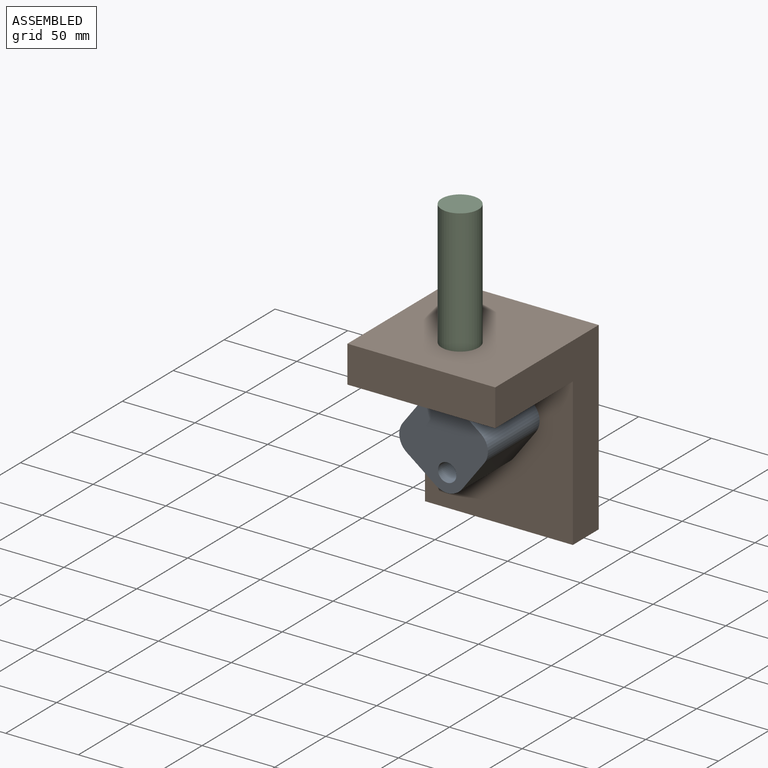
[diagram: assembled view]
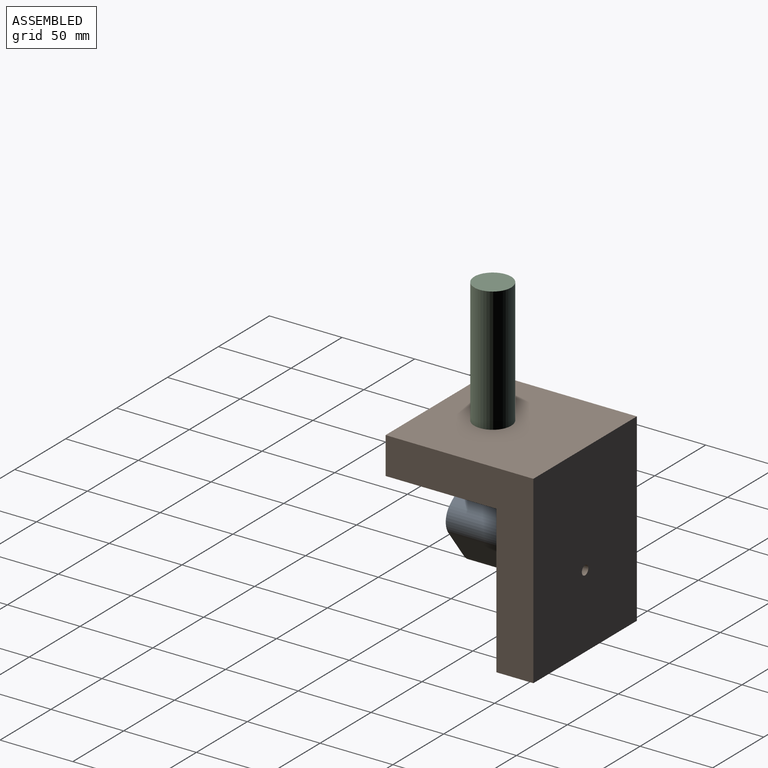
[diagram: assembled view, second angle]
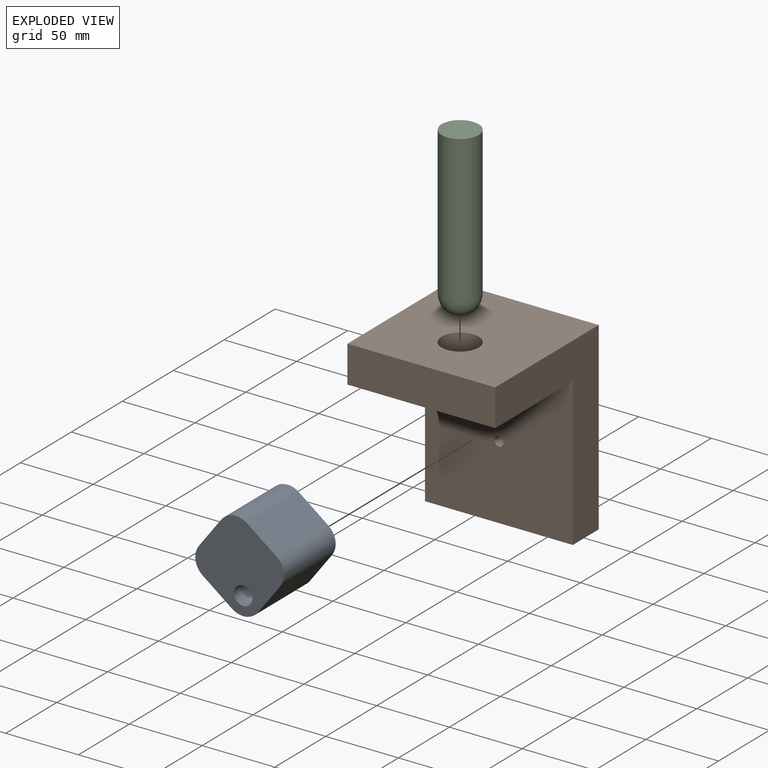
[diagram: exploded view]
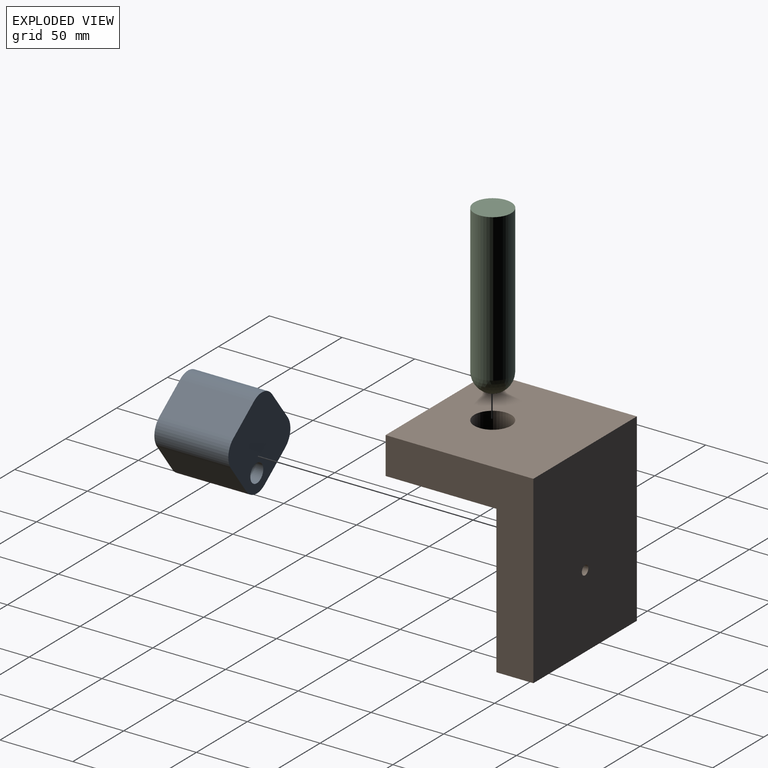
[diagram: exploded view, second angle]
ASSEMBLY  parts=3 mates=2
PART A: 11 faces, bbox 50.8x50.8x50.8 mm
  f0: plane 50.8x25.4mm, normal (1,0,0), area 1290.3mm2, adj f1,f7,f8,f9
  f1: cylinder r=12.7mm len=50.8mm, axis (0,1,0), area 1013.4mm2, adj f0,f2,f8,f9
  f2: plane 50.8x25.4mm, normal (0,0,1), area 1290.3mm2, adj f1,f3,f8,f9
  f3: cylinder r=12.7mm len=50.8mm, axis (0,1,0), area 1013.4mm2, adj f2,f4,f8,f9
  f4: plane 50.8x25.4mm, normal (-1,0,0), area 1290.3mm2, adj f3,f5,f8,f9
  f5: cylinder r=12.7mm len=50.8mm, axis (0,1,0), area 1013.4mm2, adj f4,f6,f8,f9
  f6: plane 50.8x25.4mm, normal (0,0,-1), area 1290.3mm2, adj f5,f7,f8,f9
  f7: cylinder r=12.7mm len=50.8mm, axis (0,1,0), area 1013.4mm2, adj f0,f6,f8,f9
  f8: plane 50.8x50.8mm, normal (0,-1,0), area 2315.5mm2, adj f0,f1,f2,f3,f4,f5,f6,f7
  f9: plane 50.8x50.8mm, normal (0,1,0), area 2315.5mm2, adj f0,f1,f2,f3,f4,f5,f6,f7
  f10: cylinder r=6.35mm len=50.8mm, axis (0,-1,0), area 2026.8mm2, adj f8,f9
PART B: 10 faces, bbox 101.6x101.6x127 mm
  f0: plane 127x101.6mm, normal (-1,0,0), area 5161.3mm2, adj f1,f3,f4,f5,f6,f7
  f1: plane 101.6x25.4mm, normal (0,0,-1), area 2580.6mm2, adj f0,f2,f3,f4
  f2: plane 127x101.6mm, normal (1,0,0), area 5161.3mm2, adj f1,f3,f4,f5,f6,f7
  f3: plane 101.6x101.6mm, normal (0,-1,0), area 10290.9mm2, adj f0,f1,f2,f5,f9
  f4: plane 127x101.6mm, normal (0,1,0), area 12871.5mm2, adj f0,f1,f2,f7,f9
  f5: plane 101.6x76.2mm, normal (0,0,-1), area 7235.2mm2, adj f0,f2,f3,f6,f8
  f6: plane 101.6x25.4mm, normal (0,-1,0), area 2580.6mm2, adj f0,f2,f5,f7
  f7: plane 101.6x101.6mm, normal (0,0,1), area 9815.9mm2, adj f0,f2,f4,f6,f8
  f8: cylinder r=12.7mm len=25.4mm, axis (0,0,1), area 2026.8mm2, adj f5,f7
  f9: cylinder r=3.17mm len=25.4mm, axis (0,-1,0), area 506.7mm2, adj f3,f4
PART C: 3 faces, bbox 25.4x25.4x114.3 mm
  f0: plane 25.4x25.4mm, normal (0,0,1), area 506.7mm2, adj f1
  f1: cylinder r=12.7mm len=101.6mm, axis (0,0,1), area 8107.3mm2, adj f0,f2
  f2: sphere r=12.7mm, area 1013.4mm2, adj f1
PLACE A rot(axis=(0.9,0,0.45),180deg) t=(4.74,6.55,44.42)mm
PLACE B t=(-79.15,44.65,-29.13)mm fixed
PLACE C rot(axis=(0,0,-1),58.3deg) t=(-28.35,-6.15,183.75)mm
MATE revolute B.f9 <-> A.f3  axis (0,-1,0) through (-28.35,31.95,21.67)mm
MATE cylindrical C.f1 <-> B.f8  axis (0,0,1) through (-28.35,-6.15,132.95)mm
